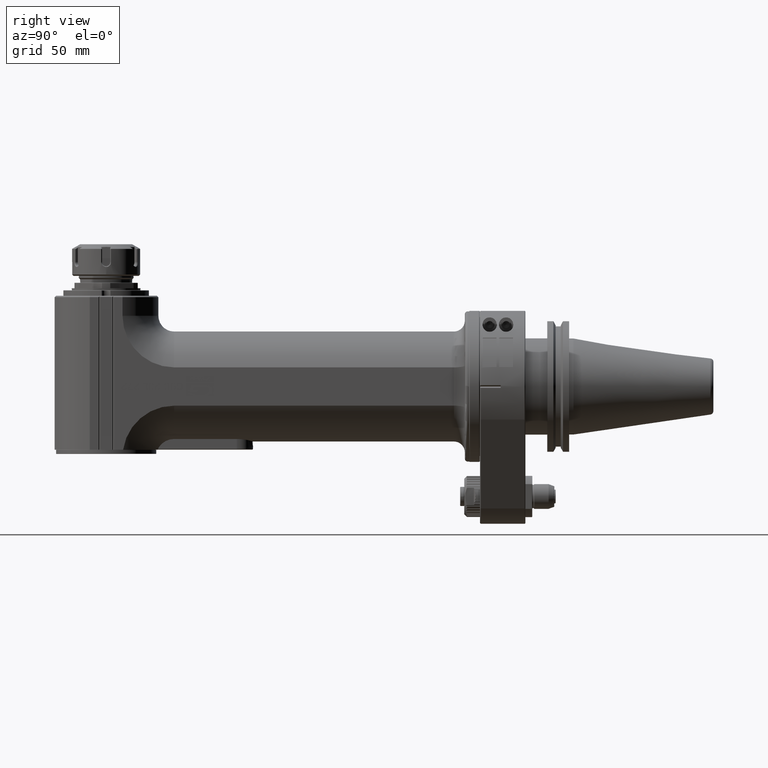
[diagram: clean part render]
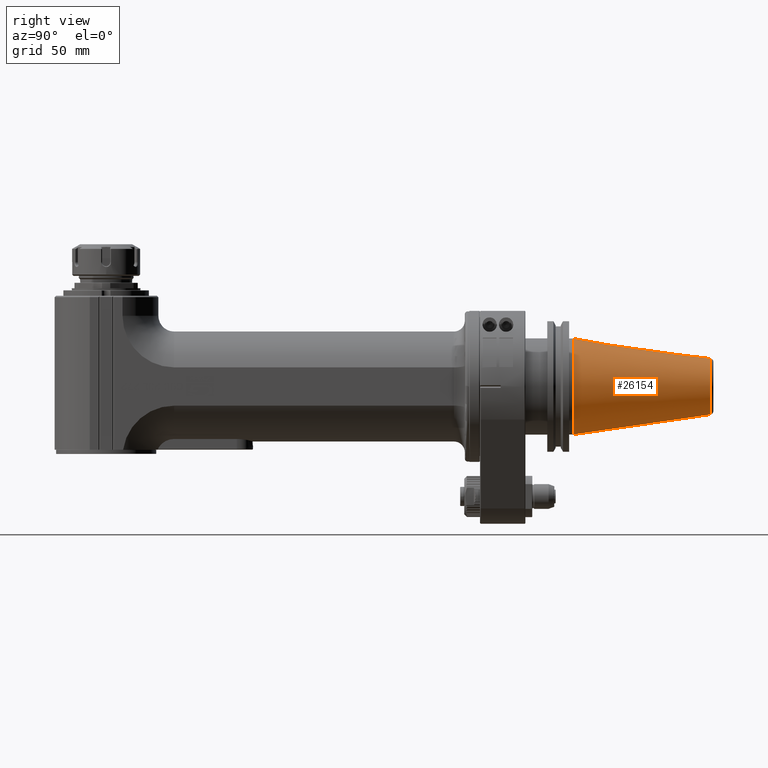
[diagram: same view with one face highlighted and labeled with its STEP entity id]
A machine part, right view. The second image highlights one B-rep face of the part: STEP entity #26154.
In plain terms, the highlighted conical surface has half-angle 8.3 deg.
Its self-contained STEP definition (entity closure, byte-faithful):
#819=CONICAL_SURFACE('',#28537,27.65552420652,0.144862327915529);
#3222=LINE('',#50746,#5635);
#5635=VECTOR('',#35518,27.65552420652);
#7491=FACE_OUTER_BOUND('',#9071,.T.);
#9071=EDGE_LOOP('',(#23695,#23696,#23697,#23698,#23699));
#9994=CIRCLE('',#28534,20.38604841304);
#9996=CIRCLE('',#28536,20.38604841304);
#9997=CIRCLE('',#28538,34.925);
#12464=VERTEX_POINT('',#50738);
#12465=VERTEX_POINT('',#50739);
#12466=VERTEX_POINT('',#50744);
#16219=EDGE_CURVE('',#12464,#12465,#9994,.T.);
#16221=EDGE_CURVE('',#12465,#12464,#9996,.T.);
#16222=EDGE_CURVE('',#12466,#12466,#9997,.T.);
#16223=EDGE_CURVE('',#12466,#12465,#3222,.T.);
#23695=ORIENTED_EDGE('',*,*,#16222,.F.);
#23696=ORIENTED_EDGE('',*,*,#16223,.T.);
#23697=ORIENTED_EDGE('',*,*,#16221,.T.);
#23698=ORIENTED_EDGE('',*,*,#16219,.T.);
#23699=ORIENTED_EDGE('',*,*,#16223,.F.);
#26154=ADVANCED_FACE('',(#7491),#819,.T.);
#28534=AXIS2_PLACEMENT_3D('',#50740,#35508,#35509);
#28536=AXIS2_PLACEMENT_3D('',#50742,#35512,#35513);
#28537=AXIS2_PLACEMENT_3D('',#50743,#35514,#35515);
#28538=AXIS2_PLACEMENT_3D('',#50745,#35516,#35517);
#35508=DIRECTION('center_axis',(0.,-1.,0.));
#35509=DIRECTION('ref_axis',(0.00108059556212205,0.,0.999999416156445));
#35512=DIRECTION('center_axis',(0.,-1.,0.));
#35513=DIRECTION('ref_axis',(0.00108059556212205,0.,0.999999416156445));
#35514=DIRECTION('center_axis',(0.,-1.,0.));
#35515=DIRECTION('ref_axis',(0.,0.,1.));
#35516=DIRECTION('center_axis',(0.,-1.,0.));
#35517=DIRECTION('ref_axis',(0.,0.,-1.));
#35518=DIRECTION('',(-1.76785359492914E-17,0.989525789068969,0.144356201000973));
#50738=CARTESIAN_POINT('',(0.0220290734443338,167.6608905025,20.386036510777));
#50739=CARTESIAN_POINT('',(2.49657089362968E-15,167.660890502501,-20.3860484130436));
#50740=CARTESIAN_POINT('Origin',(0.,167.6608905025,-1.480248809205E-14));
#50742=CARTESIAN_POINT('Origin',(0.,167.6608905025,-1.480248809205E-14));
#50743=CARTESIAN_POINT('Origin',(0.,117.83044525125,-1.480248809205E-14));
#50744=CARTESIAN_POINT('',(0.,68.,-34.925));
#50745=CARTESIAN_POINT('Origin',(0.,68.,-1.480248809205E-14));
#50746=CARTESIAN_POINT('',(3.38682491982569E-15,117.83044525125,-27.65552420652));